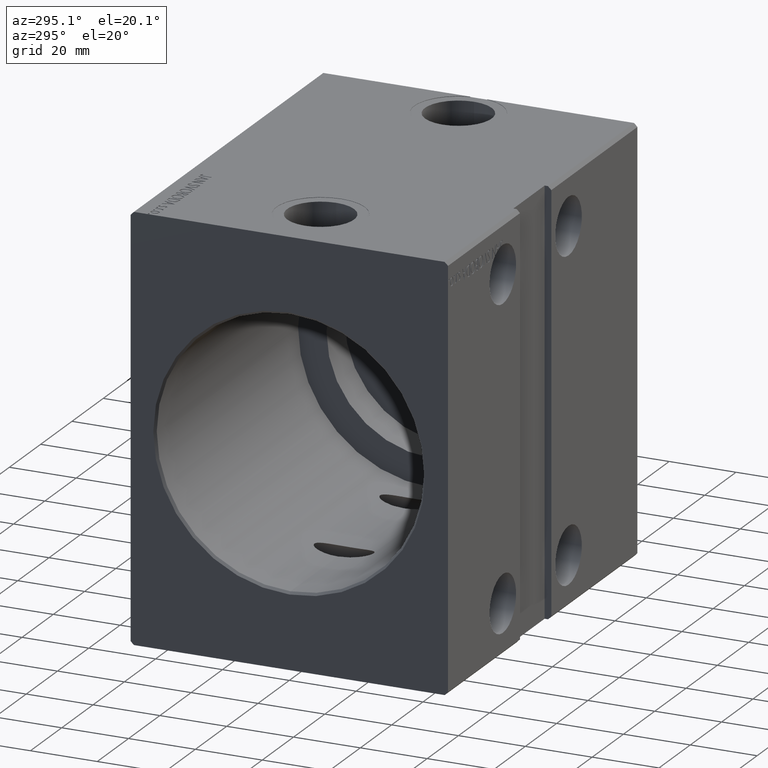
[diagram: clean part render]
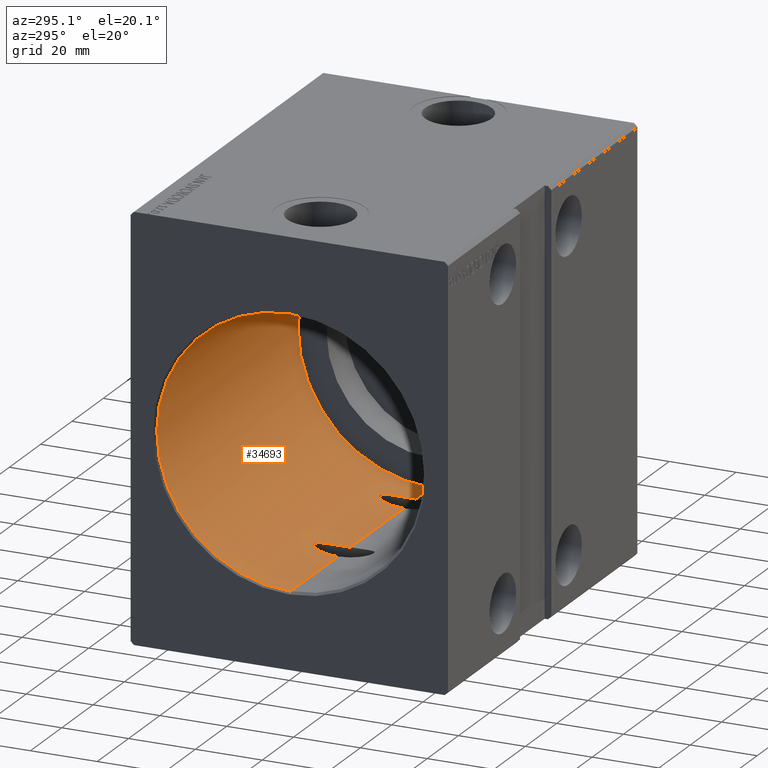
[diagram: same view with one face highlighted and labeled with its STEP entity id]
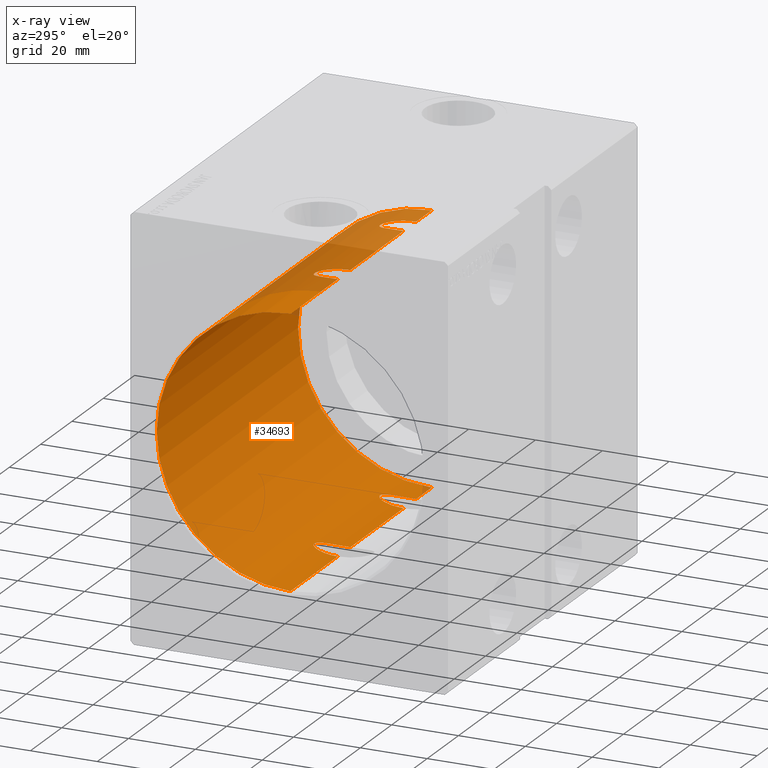
[diagram: x-ray of the same camera — body ghosted, the highlighted face saturated]
A machine part, auxiliary view. The second image highlights one B-rep face of the part: STEP entity #34693.
The next image is the same camera in x-ray: the body ghosted, the highlighted face saturated — about 9% of this face is hidden behind the body in this view.
In plain terms, the highlighted cylindrical surface (partial cylindrical patch) has radius 40 mm, axis along (-1, -0, -0).
Its self-contained STEP definition (entity closure, byte-faithful):
#150 = CARTESIAN_POINT ( 'NONE',  ( 33.57214693437428110, 8.350890721141237094, 39.11877739182680358 ) ) ;
#172 = LINE ( 'NONE', #32991, #10148 ) ;
#248 = B_SPLINE_CURVE_WITH_KNOTS ( 'NONE', 3,
 ( #18689, #33990, #17890, #14675, #17680, #10835, #8038, #36769, #30772, #27147, #7409, #27776, #28563, #23920, #14252, #21120, #4611, #20492 ),
 .UNSPECIFIED., .F., .F.,
 ( 4, 2, 2, 2, 2, 2, 2, 2, 4 ),
 ( 4.011897444213468737E-16, 0.002615585396976363806, 0.005231170793952326890, 0.006538963492440313420, 0.007846756190928299082, 0.008500652540172291480, 0.009154548889416283877, 0.009808445238660278009, 0.01046234158790427041 ),
 .UNSPECIFIED. ) ;
#268 = VERTEX_POINT ( 'NONE', #35918 ) ;
#344 = CARTESIAN_POINT ( 'NONE',  ( 91.00000000000000000, 0.000000000000000000, 40.00000000000000000 ) ) ;
#988 = CARTESIAN_POINT ( 'NONE',  ( 0.7000000000000616840, 4.898587196589413026E-15, -40.00000000000000000 ) ) ;
#1189 = CARTESIAN_POINT ( 'NONE',  ( 34.13479476889374098, 8.704262351708150547, -39.04153279242975572 ) ) ;
#1197 = VERTEX_POINT ( 'NONE', #22648 ) ;
#1205 = EDGE_CURVE ( 'NONE', #1252, #41865, #248, .T. ) ;
#1252 = VERTEX_POINT ( 'NONE', #40204 ) ;
#2001 = VERTEX_POINT ( 'NONE', #25834 ) ;
#2232 = B_SPLINE_CURVE_WITH_KNOTS ( 'NONE', 3,
 ( #12053, #38195, #12263, #5614, #8833, #21915, #41416, #34984, #25352, #9267, #42052, #9477, #18694, #31782, #15671, #2818, #2394, #15456, #28568, #41626, #38408, #9046, #35206, #5828 ),
 .UNSPECIFIED., .F., .F.,
 ( 4, 2, 2, 2, 2, 2, 2, 2, 2, 2, 2, 4 ),
 ( 0.02085609626494417876, 0.02215417883218052941, 0.02345226139941688007, 0.02604842653388958484, 0.02734650910112593897, 0.02799555038474411256, 0.02864459166836227921, 0.02929363295198044934, 0.02994267423559861946, 0.03059171551921678611, 0.03091623616102589026, 0.03124075680283499440 ),
 .UNSPECIFIED. ) ;
#2394 = CARTESIAN_POINT ( 'NONE',  ( 75.57710676253645943, 8.354814138639584442, 39.11793752145968028 ) ) ;
#2712 = CARTESIAN_POINT ( 'NONE',  ( 80.54571038801331895, 4.366864057599704196, -39.76972919806477336 ) ) ;
#2714 = CYLINDRICAL_SURFACE ( 'NONE', #13805, 40.00000000000000000 ) ;
#2818 = CARTESIAN_POINT ( 'NONE',  ( 75.40871134463458247, 8.209480517395437715, 39.14881666078688482 ) ) ;
#2953 = CARTESIAN_POINT ( 'NONE',  ( 31.27718047947739777, 3.482741801787033076, 39.85758575065943177 ) ) ;
#3058 = EDGE_CURVE ( 'NONE', #21246, #35544, #38176, .T. ) ;
#3068 = ORIENTED_EDGE ( 'NONE', *, *, #19797, .F. ) ;
#3200 = CARTESIAN_POINT ( 'NONE',  ( 36.60192945023006672, 8.199952475798266249, 39.15082488734756794 ) ) ;
#3322 = VECTOR ( 'NONE', #31318, 1000.000000000000000 ) ;
#3365 = CARTESIAN_POINT ( 'NONE',  ( 91.00000000000000000, 4.898587196589413026E-15, -40.00000000000000000 ) ) ;
#3404 = CARTESIAN_POINT ( 'NONE',  ( 77.54851048221539145, 8.813063603515809419, 39.01706381279743141 ) ) ;
#3545 = ORIENTED_EDGE ( 'NONE', *, *, #3058, .T. ) ;
#3612 = DIRECTION ( 'NONE',  ( -1.000000000000000000, -0.000000000000000000, -0.000000000000000000 ) ) ;
#3618 = CARTESIAN_POINT ( 'NONE',  ( 77.00000000000000000, 8.888194417315583351, 39.00000000000000000 ) ) ;
#3986 = CARTESIAN_POINT ( 'NONE',  ( 76.13859483857218891, 8.705886128782225342, -39.04116947103747748 ) ) ;
#4159 = CARTESIAN_POINT ( 'NONE',  ( 73.00000000000000000, 5.780399415896417278E-16, 40.00000000000000000 ) ) ;
#4199 = CARTESIAN_POINT ( 'NONE',  ( 73.06814962652907752, 1.752904412375390075, -39.96398568637000182 ) ) ;
#4447 = EDGE_CURVE ( 'NONE', #32976, #12187, #22585, .T. ) ;
#4579 = CARTESIAN_POINT ( 'NONE',  ( 0.7000000000000616840, 0.000000000000000000, 0.000000000000000000 ) ) ;
#4611 = CARTESIAN_POINT ( 'NONE',  ( 35.22259166980755651, 8.888194417315562035, -39.00000000000000711 ) ) ;
#4624 = CARTESIAN_POINT ( 'NONE',  ( 31.84034224388072332, 5.603247014670987625, -39.60782839838529412 ) ) ;
#4831 = CARTESIAN_POINT ( 'NONE',  ( 31.27718047947745816, 3.482741801787012204, -39.85758575065943177 ) ) ;
#4896 = ORIENTED_EDGE ( 'NONE', *, *, #19698, .T. ) ;
#5044 = CARTESIAN_POINT ( 'NONE',  ( 31.05225755694951317, 1.746770409802224311, -39.97130752758187811 ) ) ;
#5293 = EDGE_CURVE ( 'NONE', #12726, #1252, #8584, .T. ) ;
#5353 = CARTESIAN_POINT ( 'NONE',  ( 38.55324516737658058, 4.336586243679193764, 39.77318005738936080 ) ) ;
#5614 = CARTESIAN_POINT ( 'NONE',  ( 73.06814962652906331, 1.752904412375376531, 39.96398568637000182 ) ) ;
#5828 = CARTESIAN_POINT ( 'NONE',  ( 77.00000000000000000, 8.888194417315583351, 39.00000000000000000 ) ) ;
#5932 = CARTESIAN_POINT ( 'NONE',  ( 77.86322018110577403, 8.705178891867166868, -39.04132803922884420 ) ) ;
#5987 = CARTESIAN_POINT ( 'NONE',  ( 78.59111670934544236, 8.209697689840783852, 39.14877357463412011 ) ) ;
#6091 = EDGE_CURVE ( 'NONE', #36233, #12506, #172, .T. ) ;
#6387 = CARTESIAN_POINT ( 'NONE',  ( 31.05225755694946344, 1.746770409802232527, 39.97130752758188521 ) ) ;
#6415 = CARTESIAN_POINT ( 'NONE',  ( 80.98638329437709160, 0.8819960549049381537, 39.99268894227613202 ) ) ;
#6455 = ORIENTED_EDGE ( 'NONE', *, *, #10405, .F. ) ;
#6625 = CARTESIAN_POINT ( 'NONE',  ( 79.03930862434320659, 7.725932859796179386, 39.24719242089387450 ) ) ;
#6631 = CARTESIAN_POINT ( 'NONE',  ( 36.43557347892666343, 8.344890487185367078, 39.12006350427105161 ) ) ;
#6972 = EDGE_CURVE ( 'NONE', #41865, #28706, #33126, .T. ) ;
#7409 = CARTESIAN_POINT ( 'NONE',  ( 36.91073227392961087, 7.882168046752674684, -39.21603928047623100 ) ) ;
#7421 = CARTESIAN_POINT ( 'NONE',  ( 73.01334068797261523, 0.8751396838789607946, -39.99283631293248220 ) ) ;
#7583 = EDGE_CURVE ( 'NONE', #28706, #35544, #35746, .T. ) ;
#7633 = CARTESIAN_POINT ( 'NONE',  ( 74.58846641846849934, 7.192721627606916357, -39.34846814882651955 ) ) ;
#7847 = CARTESIAN_POINT ( 'NONE',  ( 33.09640844770643753, 7.890292373783818647, -39.21440103295969948 ) ) ;
#7915 = VERTEX_POINT ( 'NONE', #4159 ) ;
#8038 = CARTESIAN_POINT ( 'NONE',  ( 38.00983182122093496, 6.007179968913170853, -39.54838495781832819 ) ) ;
#8052 = CARTESIAN_POINT ( 'NONE',  ( 31.99184554558158311, 6.011549350863598207, -39.54773088821401217 ) ) ;
#8229 = CARTESIAN_POINT ( 'NONE',  ( 77.00000000000000000, 8.888194417315583351, 39.00000000000000000 ) ) ;
#8581 = CARTESIAN_POINT ( 'NONE',  ( 38.72230825713939595, 3.484280546040521287, 39.85734299538246006 ) ) ;
#8584 = LINE ( 'NONE', #25097, #3322 ) ;
#8833 = CARTESIAN_POINT ( 'NONE',  ( 73.10980483652021178, 2.193571123626156805, 39.94219404680328722 ) ) ;
#8934 = CARTESIAN_POINT ( 'NONE',  ( 80.98638329437710581, 0.8819960549049445930, -39.99268894227613913 ) ) ;
#9046 = CARTESIAN_POINT ( 'NONE',  ( 76.77712757299227064, 8.878478442374140300, 39.00221780115114001 ) ) ;
#9192 = ORIENTED_EDGE ( 'NONE', *, *, #15406, .T. ) ;
#9267 = CARTESIAN_POINT ( 'NONE',  ( 74.27182239767300587, 6.618623539690030810, 39.44913252582588115 ) ) ;
#9402 = CARTESIAN_POINT ( 'NONE',  ( 33.09640844770640911, 7.890292373783891478, 39.21440103295967816 ) ) ;
#9434 = CARTESIAN_POINT ( 'NONE',  ( 38.00983182122093496, 6.007179968913225920, 39.54838495781831398 ) ) ;
#9477 = CARTESIAN_POINT ( 'NONE',  ( 74.58846641846848513, 7.192721627606870172, 39.34846814882652666 ) ) ;
#10056 = CARTESIAN_POINT ( 'NONE',  ( 78.06190118001923395, 8.600817236880976324, 39.06458831139044463 ) ) ;
#10148 = VECTOR ( 'NONE', #3612, 1000.000000000000000 ) ;
#10405 = EDGE_CURVE ( 'NONE', #7915, #39182, #2232, .T. ) ;
#10671 = B_SPLINE_CURVE_WITH_KNOTS ( 'NONE', 3,
 ( #3618, #19500, #28946, #19288, #3404, #22504, #10056, #29798, #5987, #35997, #6625, #26369, #13278, #39422, #32997, #16700, #12646, #19709, #12426, #6415, #38573, #35362 ),
 .UNSPECIFIED., .F., .F.,
 ( 4, 2, 2, 2, 2, 2, 2, 2, 2, 2, 4 ),
 ( 0.03124075680283499440, 0.03156586646944081753, 0.03189097613604664067, 0.03254119546925828693, 0.03319141480246993320, 0.03384163413568157946, 0.03514207280210486506, 0.03644251146852815759, 0.03904338880137473572, 0.04034382746779803519, 0.04164426613422132772 ),
 .UNSPECIFIED. ) ;
#10835 = CARTESIAN_POINT ( 'NONE',  ( 38.16384749387301412, 5.591509799604454045, -39.60950613416586208 ) ) ;
#10851 = CARTESIAN_POINT ( 'NONE',  ( 74.37097286816660358, 6.812983839052423995, -39.41599220215406518 ) ) ;
#11302 = LINE ( 'NONE', #20955, #11731 ) ;
#11731 = VECTOR ( 'NONE', #17726, 1000.000000000000000 ) ;
#11733 = CARTESIAN_POINT ( 'NONE',  ( 78.59111670934548499, 8.209697689840799839, -39.14877357463412011 ) ) ;
#12010 = CARTESIAN_POINT ( 'NONE',  ( 39.00000000000139977, -1.975033726230713128E-13, 40.00000000000000000 ) ) ;
#12053 = CARTESIAN_POINT ( 'NONE',  ( 73.00000000000000000, 5.780399415896417278E-16, 40.00000000000000000 ) ) ;
#12080 = ORIENTED_EDGE ( 'NONE', *, *, #41712, .F. ) ;
#12154 = CARTESIAN_POINT ( 'NONE',  ( 78.06190118001926237, 8.600817236881001193, -39.06458831139043042 ) ) ;
#12187 = VERTEX_POINT ( 'NONE', #28306 ) ;
#12217 = CARTESIAN_POINT ( 'NONE',  ( 35.86954469703439941, 8.702382527277837454, 39.04195325235094316 ) ) ;
#12263 = CARTESIAN_POINT ( 'NONE',  ( 73.01334068797261523, 0.8751396838789510246, 39.99283631293250352 ) ) ;
#12426 = CARTESIAN_POINT ( 'NONE',  ( 80.93123102730362461, 1.760347307088199642, 39.96366178458815455 ) ) ;
#12506 = VERTEX_POINT ( 'NONE', #28045 ) ;
#12537 = B_SPLINE_CURVE_WITH_KNOTS ( 'NONE', 3,
 ( #12010, #31315, #24884, #8581, #5353, #31523, #9434, #29375, #19078, #16278, #15843, #3200, #6631, #16069, #12217, #32159, #42432, #38362 ),
 .UNSPECIFIED., .F., .F.,
 ( 4, 2, 2, 2, 2, 2, 2, 2, 4 ),
 ( 4.041264202224836000E-16, 0.002615585396976400669, 0.005231170793952397147, 0.006538963492440391483, 0.007846756190928385818, 0.008500652540172383420, 0.009154548889416382756, 0.009808445238660380358, 0.01046234158790437796 ),
 .UNSPECIFIED. ) ;
#12591 = CARTESIAN_POINT ( 'NONE',  ( 81.00000000000002842, 0.4396523920247054629, -40.00000000000000000 ) ) ;
#12614 = CARTESIAN_POINT ( 'NONE',  ( 34.55424423128182809, 8.848522382663812635, 39.00909019079053053 ) ) ;
#12646 = CARTESIAN_POINT ( 'NONE',  ( 80.71853671562243449, 3.508186181228627465, 39.85547049742937276 ) ) ;
#12726 = VERTEX_POINT ( 'NONE', #31168 ) ;
#13024 = DIRECTION ( 'NONE',  ( -1.000000000000000000, -0.000000000000000000, -0.000000000000000000 ) ) ;
#13039 = CARTESIAN_POINT ( 'NONE',  ( 32.95733738069867513, 7.721720542795610598, 39.24802279663229143 ) ) ;
#13278 = CARTESIAN_POINT ( 'NONE',  ( 79.63629655112555383, 6.817500190868253540, 39.41680541524587511 ) ) ;
#13805 = AXIS2_PLACEMENT_3D ( 'NONE', #19234, #28892, #32101 ) ;
#13846 = CARTESIAN_POINT ( 'NONE',  ( 74.70681071213223845, 7.377903018384911249, -39.31410217644513239 ) ) ;
#14252 = CARTESIAN_POINT ( 'NONE',  ( 35.86954469703442783, 8.702382527277757518, -39.04195325235096448 ) ) ;
#14264 = CARTESIAN_POINT ( 'NONE',  ( 75.10255778544194527, 7.897159810391429779, -39.21301165728715432 ) ) ;
#14269 = CARTESIAN_POINT ( 'NONE',  ( 33.93509665507554018, 8.599058470145475752, -39.06497553941076717 ) ) ;
#14675 = CARTESIAN_POINT ( 'NONE',  ( 38.72230825713936753, 3.484280546040485316, -39.85734299538246006 ) ) ;
#15095 = B_SPLINE_CURVE_WITH_KNOTS ( 'NONE', 3,
 ( #20297, #23724, #7421, #4199, #33158, #33368, #36359, #26733, #30785, #27572, #10851, #7633, #13846, #39793, #14264, #17277, #20717, #40013, #3986, #17066, #37204, #27160, #30156, #33792 ),
 .UNSPECIFIED., .F., .F.,
 ( 4, 2, 2, 2, 2, 2, 2, 2, 2, 2, 2, 4 ),
 ( 0.02085609626494422039, 0.02215417883218056411, 0.02345226139941690782, 0.02604842653388959178, 0.02734650910112593550, 0.02799555038474411950, 0.02864459166836230003, 0.02929363295198048056, 0.02994267423559866109, 0.03059171551921684162, 0.03091623616102594924, 0.03124075680283506032 ),
 .UNSPECIFIED. ) ;
#15121 = ORIENTED_EDGE ( 'NONE', *, *, #4447, .T. ) ;
#15406 = EDGE_CURVE ( 'NONE', #2001, #268, #12537, .T. ) ;
#15456 = CARTESIAN_POINT ( 'NONE',  ( 75.93976231450152170, 8.601702186180739673, 39.06439139068070432 ) ) ;
#15671 = CARTESIAN_POINT ( 'NONE',  ( 75.10255778544193106, 7.897159810391387147, 39.21301165728716853 ) ) ;
#15779 = CARTESIAN_POINT ( 'NONE',  ( 80.15652418789123601, 5.611982908940339243, -39.60657601176857412 ) ) ;
#15843 = CARTESIAN_POINT ( 'NONE',  ( 36.91073227392959666, 7.882168046752754620, 39.21603928047621679 ) ) ;
#16004 = CARTESIAN_POINT ( 'NONE',  ( 78.42566298075200848, 8.352678000873540398, -39.11839576585898470 ) ) ;
#16033 = CARTESIAN_POINT ( 'NONE',  ( 31.99184554558152982, 6.011549350863647057, 39.54773088821401927 ) ) ;
#16069 = CARTESIAN_POINT ( 'NONE',  ( 36.06971018587698552, 8.596468886650258767, 39.06555117366413299 ) ) ;
#16278 = CARTESIAN_POINT ( 'NONE',  ( 37.05180541677442108, 7.710174617361084337, 39.25029562884185452 ) ) ;
#16654 = EDGE_CURVE ( 'NONE', #7915, #2001, #11302, .T. ) ;
#16700 = CARTESIAN_POINT ( 'NONE',  ( 80.54571038801326210, 4.366864057599693538, 39.76972919806478046 ) ) ;
#17066 = CARTESIAN_POINT ( 'NONE',  ( 76.45171186835200672, 8.813097078647221139, -39.01705603477455497 ) ) ;
#17229 = CARTESIAN_POINT ( 'NONE',  ( 91.00000000000000000, 4.898587196589413026E-15, -40.00000000000000000 ) ) ;
#17277 = CARTESIAN_POINT ( 'NONE',  ( 75.40871134463456826, 8.209480517395482124, -39.14881666078688482 ) ) ;
#17652 = DIRECTION ( 'NONE',  ( -1.000000000000000000, 0.000000000000000000, 0.000000000000000000 ) ) ;
#17680 = CARTESIAN_POINT ( 'NONE',  ( 38.55324516737657348, 4.336586243679152908, -39.77318005738936080 ) ) ;
#17696 = CARTESIAN_POINT ( 'NONE',  ( 31.45100102384058260, 4.353716322937175143, -39.77123262300046491 ) ) ;
#17726 = DIRECTION ( 'NONE',  ( -1.000000000000000000, -0.000000000000000000, -0.000000000000000000 ) ) ;
#17890 = CARTESIAN_POINT ( 'NONE',  ( 38.94656372586337056, 1.758256962777156929, -39.97069594125083114 ) ) ;
#17906 = CARTESIAN_POINT ( 'NONE',  ( 31.00000000000001776, 4.320547275526808476E-15, -40.00000000000000000 ) ) ;
#18119 = CARTESIAN_POINT ( 'NONE',  ( 35.00000000000000711, 8.888194417315572693, -39.00000000000000711 ) ) ;
#18328 = CARTESIAN_POINT ( 'NONE',  ( 33.40469418568827820, 8.205957392806936923, -39.14956226300645170 ) ) ;
#18415 = B_SPLINE_CURVE_WITH_KNOTS ( 'NONE', 3,
 ( #42399, #32765, #12614, #29556, #25702, #150, #38759, #9402, #13039, #39397, #22477, #16033, #19258, #32339, #2953, #6387, #26127, #25915 ),
 .UNSPECIFIED., .F., .F.,
 ( 4, 2, 2, 2, 2, 2, 2, 2, 4 ),
 ( 0.01046234158790437796, 0.01111195125521938047, 0.01176156092253438125, 0.01241117058984938376, 0.01306078025716438454, 0.01435999959179438609, 0.01565921892642438765, 0.01825765759568439422, 0.02085609626494440080 ),
 .UNSPECIFIED. ) ;
#18519 = CARTESIAN_POINT ( 'NONE',  ( 0.7000000000000616840, 0.000000000000000000, 40.00000000000000000 ) ) ;
#18689 = CARTESIAN_POINT ( 'NONE',  ( 39.00000000000137845, -1.933016362199070337E-13, -40.00000000000000000 ) ) ;
#18694 = CARTESIAN_POINT ( 'NONE',  ( 74.70681071213223845, 7.377903018384873945, 39.31410217644515370 ) ) ;
#18733 = CIRCLE ( 'NONE', #33121, 40.00000000000000000 ) ;
#18782 = ORIENTED_EDGE ( 'NONE', *, *, #16654, .T. ) ;
#18810 = CARTESIAN_POINT ( 'NONE',  ( 79.63629655112558225, 6.817500190868268639, -39.41680541524587511 ) ) ;
#18925 = DIRECTION ( 'NONE',  ( 0.000000000000000000, 0.000000000000000000, -1.000000000000000000 ) ) ;
#19015 = CARTESIAN_POINT ( 'NONE',  ( 80.00453569807767451, 6.020847662574150938, -39.54633044189965574 ) ) ;
#19078 = CARTESIAN_POINT ( 'NONE',  ( 37.43569995406782880, 7.179022913423121821, 39.35214896718182587 ) ) ;
#19234 = CARTESIAN_POINT ( 'NONE',  ( 91.00000000000000000, 0.000000000000000000, 0.000000000000000000 ) ) ;
#19258 = CARTESIAN_POINT ( 'NONE',  ( 31.84034224388068779, 5.603247014671032034, 39.60782839838529412 ) ) ;
#19288 = CARTESIAN_POINT ( 'NONE',  ( 77.43934574472250176, 8.841323074390393444, 39.01065718486847800 ) ) ;
#19500 = CARTESIAN_POINT ( 'NONE',  ( 77.11072475337967091, 8.888194417315588680, 39.00000000000001421 ) ) ;
#19512 = ORIENTED_EDGE ( 'NONE', *, *, #5293, .F. ) ;
#19698 = EDGE_CURVE ( 'NONE', #1197, #21246, #39655, .T. ) ;
#19709 = CARTESIAN_POINT ( 'NONE',  ( 80.88971534772772998, 2.198302733259651198, 39.94194461723601819 ) ) ;
#19729 = DIRECTION ( 'NONE',  ( -1.000000000000000000, -0.000000000000000000, -0.000000000000000000 ) ) ;
#19797 = EDGE_CURVE ( 'NONE', #36233, #27762, #18733, .T. ) ;
#20297 = CARTESIAN_POINT ( 'NONE',  ( 73.00000000000000000, 5.476627126394349254E-15, -40.00000000000000000 ) ) ;
#20492 = CARTESIAN_POINT ( 'NONE',  ( 35.00000000000000711, 8.888194417315572693, -39.00000000000000711 ) ) ;
#20717 = CARTESIAN_POINT ( 'NONE',  ( 75.57710676253644522, 8.354814138639619969, -39.11793752145966607 ) ) ;
#20931 = CARTESIAN_POINT ( 'NONE',  ( 32.57256012174860160, 7.192548791584959744, -39.34966693918345015 ) ) ;
#20955 = CARTESIAN_POINT ( 'NONE',  ( 91.00000000000000000, 0.000000000000000000, 40.00000000000000000 ) ) ;
#21120 = CARTESIAN_POINT ( 'NONE',  ( 35.44814496955359573, 8.848081900637698283, -39.00919150776435629 ) ) ;
#21246 = VERTEX_POINT ( 'NONE', #18519 ) ;
#21374 = ORIENTED_EDGE ( 'NONE', *, *, #6091, .T. ) ;
#21915 = CARTESIAN_POINT ( 'NONE',  ( 73.28018952717590651, 3.500538506391954741, 39.85610001433710181 ) ) ;
#22450 = CARTESIAN_POINT ( 'NONE',  ( 77.22073123561260388, 8.878721509888563901, -39.00216240224276731 ) ) ;
#22477 = CARTESIAN_POINT ( 'NONE',  ( 32.35749870789384630, 6.805507322899450706, 39.41886368329796397 ) ) ;
#22487 = ORIENTED_EDGE ( 'NONE', *, *, #7583, .F. ) ;
#22504 = CARTESIAN_POINT ( 'NONE',  ( 77.86322018110574561, 8.705178891867140223, 39.04132803922884420 ) ) ;
#22523 = CARTESIAN_POINT ( 'NONE',  ( 31.00000000000001776, 4.320547275526808476E-15, -40.00000000000000000 ) ) ;
#22585 = B_SPLINE_CURVE_WITH_KNOTS ( 'NONE', 3,
 ( #35313, #41733, #22450, #25458, #24819, #5932, #12154, #16004, #11733, #28464, #28248, #41519, #18810, #19015, #15779, #2712, #25033, #41091, #28889, #8934, #12591, #41309 ),
 .UNSPECIFIED., .F., .F.,
 ( 4, 2, 2, 2, 2, 2, 2, 2, 2, 2, 4 ),
 ( 0.03124075680283506032, 0.03156586646944088692, 0.03189097613604671699, 0.03254119546925837020, 0.03319141480247002340, 0.03384163413568167661, 0.03514207280210498302, 0.03644251146852828943, 0.03904338880137488837, 0.04034382746779818785, 0.04164426613422148038 ),
 .UNSPECIFIED. ) ;
#22648 = CARTESIAN_POINT ( 'NONE',  ( 30.99999999999996803, -5.780399254337703889E-16, 40.00000000000000000 ) ) ;
#23087 = FACE_OUTER_BOUND ( 'NONE', #24838, .T. ) ;
#23724 = CARTESIAN_POINT ( 'NONE',  ( 72.99999999999921840, 0.4371452684178859238, -40.00000000000000000 ) ) ;
#23920 = CARTESIAN_POINT ( 'NONE',  ( 36.06971018587699973, 8.596468886650177055, -39.06555117366415431 ) ) ;
#24147 = CARTESIAN_POINT ( 'NONE',  ( 34.77886755181009448, 8.888194417315562035, -39.00000000000000711 ) ) ;
#24520 = LINE ( 'NONE', #17229, #37938 ) ;
#24819 = CARTESIAN_POINT ( 'NONE',  ( 77.54851048221541987, 8.813063603515839617, -39.01706381279741009 ) ) ;
#24838 = EDGE_LOOP ( 'NONE', ( #12080, #3068, #21374, #37539, #6455, #18782, #9192, #30963, #4896, #3545, #22487, #26901, #25758, #19512, #29825, #15121 ) ) ;
#24884 = CARTESIAN_POINT ( 'NONE',  ( 38.94656372586340609, 1.758256962777178023, 39.97069594125082403 ) ) ;
#25033 = CARTESIAN_POINT ( 'NONE',  ( 80.71853671562247712, 3.508186181228631462, -39.85547049742937276 ) ) ;
#25097 = CARTESIAN_POINT ( 'NONE',  ( 91.00000000000000000, 4.898587196589413026E-15, -40.00000000000000000 ) ) ;
#25352 = CARTESIAN_POINT ( 'NONE',  ( 73.99713873928055818, 6.024669445494610365, 39.54572412377565627 ) ) ;
#25458 = CARTESIAN_POINT ( 'NONE',  ( 77.43934574472250176, 8.841323074390446735, -39.01065718486845668 ) ) ;
#25702 = CARTESIAN_POINT ( 'NONE',  ( 33.93509665507549045, 8.599058470145555688, 39.06497553941075296 ) ) ;
#25758 = ORIENTED_EDGE ( 'NONE', *, *, #1205, .F. ) ;
#25834 = CARTESIAN_POINT ( 'NONE',  ( 39.00000000000139977, -1.975033726230713128E-13, 40.00000000000000000 ) ) ;
#25915 = CARTESIAN_POINT ( 'NONE',  ( 30.99999999999996803, -5.780399254337703889E-16, 40.00000000000000000 ) ) ;
#26127 = CARTESIAN_POINT ( 'NONE',  ( 30.99999999999917577, 0.8750561776355655352, 40.00000000000000000 ) ) ;
#26278 = VECTOR ( 'NONE', #19729, 1000.000000000000000 ) ;
#26369 = CARTESIAN_POINT ( 'NONE',  ( 79.42428242203958177, 7.197676588651832574, 39.34872371033357297 ) ) ;
#26733 = CARTESIAN_POINT ( 'NONE',  ( 73.84355187867357984, 5.612572045631595508, -39.60652766093454602 ) ) ;
#26901 = ORIENTED_EDGE ( 'NONE', *, *, #6972, .F. ) ;
#27024 = DIRECTION ( 'NONE',  ( 0.000000000000000000, 0.000000000000000000, 1.000000000000000000 ) ) ;
#27147 = CARTESIAN_POINT ( 'NONE',  ( 37.05180541677442818, 7.710174617361007066, -39.25029562884185452 ) ) ;
#27160 = CARTESIAN_POINT ( 'NONE',  ( 76.77712757299232749, 8.878478442374152735, -39.00221780115114711 ) ) ;
#27231 = DIRECTION ( 'NONE',  ( -1.000000000000000000, 0.000000000000000000, 0.000000000000000000 ) ) ;
#27572 = CARTESIAN_POINT ( 'NONE',  ( 74.27182239767303429, 6.618623539690069890, -39.44913252582585983 ) ) ;
#27762 = VERTEX_POINT ( 'NONE', #32329 ) ;
#27776 = CARTESIAN_POINT ( 'NONE',  ( 36.60192945023008804, 8.199952475798188090, -39.15082488734758215 ) ) ;
#28045 = CARTESIAN_POINT ( 'NONE',  ( 81.00000000000137845, 1.974098656450864809E-13, 40.00000000000000000 ) ) ;
#28248 = CARTESIAN_POINT ( 'NONE',  ( 79.03930862434323501, 7.725932859796192709, -39.24719242089387450 ) ) ;
#28306 = CARTESIAN_POINT ( 'NONE',  ( 81.00000000000140687, 1.997970507834764869E-13, -40.00000000000000000 ) ) ;
#28464 = CARTESIAN_POINT ( 'NONE',  ( 78.89834460036773578, 7.896197384792814411, -39.21320792050732962 ) ) ;
#28563 = CARTESIAN_POINT ( 'NONE',  ( 36.43557347892666343, 8.344890487185285366, -39.12006350427107293 ) ) ;
#28568 = CARTESIAN_POINT ( 'NONE',  ( 76.13859483857214627, 8.705886128782170275, 39.04116947103749169 ) ) ;
#28676 = VECTOR ( 'NONE', #13024, 1000.000000000000000 ) ;
#28706 = VERTEX_POINT ( 'NONE', #22523 ) ;
#28889 = CARTESIAN_POINT ( 'NONE',  ( 80.93123102730365304, 1.760347307088206525, -39.96366178458815455 ) ) ;
#28892 = DIRECTION ( 'NONE',  ( -1.000000000000000000, -0.000000000000000000, -0.000000000000000000 ) ) ;
#28946 = CARTESIAN_POINT ( 'NONE',  ( 77.22073123561258967, 8.878721509888510610, 39.00216240224278863 ) ) ;
#29375 = CARTESIAN_POINT ( 'NONE',  ( 37.64571886948710500, 6.799238401160353718, 39.41993557979120055 ) ) ;
#29431 = CARTESIAN_POINT ( 'NONE',  ( 35.00000000000000711, 8.888194417315572693, -39.00000000000000711 ) ) ;
#29556 = CARTESIAN_POINT ( 'NONE',  ( 34.13479476889369124, 8.704262351708251799, 39.04153279242975572 ) ) ;
#29798 = CARTESIAN_POINT ( 'NONE',  ( 78.42566298075198006, 8.352678000873515529, 39.11839576585899181 ) ) ;
#29825 = ORIENTED_EDGE ( 'NONE', *, *, #34735, .T. ) ;
#29913 = EDGE_CURVE ( 'NONE', #268, #1197, #18415, .T. ) ;
#30156 = CARTESIAN_POINT ( 'NONE',  ( 76.88947585469833257, 8.888194417315611773, -38.99999999999998579 ) ) ;
#30446 = CARTESIAN_POINT ( 'NONE',  ( 91.00000000000000000, 0.000000000000000000, 0.000000000000000000 ) ) ;
#30742 = DIRECTION ( 'NONE',  ( -1.000000000000000000, -0.000000000000000000, -0.000000000000000000 ) ) ;
#30772 = CARTESIAN_POINT ( 'NONE',  ( 37.43569995406782880, 7.179022913423050767, -39.35214896718183297 ) ) ;
#30785 = CARTESIAN_POINT ( 'NONE',  ( 73.99713873928057239, 6.024669445494645004, -39.54572412377564916 ) ) ;
#30790 = CARTESIAN_POINT ( 'NONE',  ( 30.99999999999922906, 0.8750561776355639809, -39.99999999999999289 ) ) ;
#30963 = ORIENTED_EDGE ( 'NONE', *, *, #29913, .T. ) ;
#31168 = CARTESIAN_POINT ( 'NONE',  ( 73.00000000000000000, 5.476627126394349254E-15, -40.00000000000000000 ) ) ;
#31315 = CARTESIAN_POINT ( 'NONE',  ( 39.00000000000003553, 0.8842772873619435536, 40.00000000000000000 ) ) ;
#31318 = DIRECTION ( 'NONE',  ( -1.000000000000000000, -0.000000000000000000, -0.000000000000000000 ) ) ;
#31378 = CARTESIAN_POINT ( 'NONE',  ( 77.00000000000001421, 8.888194417315609996, -38.99999999999999289 ) ) ;
#31420 = CARTESIAN_POINT ( 'NONE',  ( 32.95733738069870356, 7.721720542795547537, -39.24802279663229143 ) ) ;
#31523 = CARTESIAN_POINT ( 'NONE',  ( 38.16384749387303543, 5.591509799604510000, 39.60950613416584787 ) ) ;
#31782 = CARTESIAN_POINT ( 'NONE',  ( 74.96368527018283601, 7.729691225309620606, 39.24645151411821331 ) ) ;
#32101 = DIRECTION ( 'NONE',  ( 0.000000000000000000, 0.000000000000000000, 1.000000000000000000 ) ) ;
#32159 = CARTESIAN_POINT ( 'NONE',  ( 35.44814496955356731, 8.848081900637779995, 39.00919150776432787 ) ) ;
#32329 = CARTESIAN_POINT ( 'NONE',  ( 91.00000000000000000, 4.898587196589413026E-15, -40.00000000000000000 ) ) ;
#32339 = CARTESIAN_POINT ( 'NONE',  ( 31.45100102384053997, 4.353716322937207117, 39.77123262300046491 ) ) ;
#32765 = CARTESIAN_POINT ( 'NONE',  ( 34.77886755181008738, 8.888194417315640194, 38.99999999999998579 ) ) ;
#32976 = VERTEX_POINT ( 'NONE', #31378 ) ;
#32991 = CARTESIAN_POINT ( 'NONE',  ( 91.00000000000000000, 0.000000000000000000, 40.00000000000000000 ) ) ;
#32997 = CARTESIAN_POINT ( 'NONE',  ( 80.15652418789117917, 5.611982908940325920, 39.60657601176856701 ) ) ;
#33121 = AXIS2_PLACEMENT_3D ( 'NONE', #30446, #27231, #27024 ) ;
#33126 = B_SPLINE_CURVE_WITH_KNOTS ( 'NONE', 3,
 ( #18119, #24147, #34625, #1189, #14269, #34413, #18328, #7847, #31420, #20931, #34004, #8052, #4624, #17696, #4831, #5044, #30790, #17906 ),
 .UNSPECIFIED., .F., .F.,
 ( 4, 2, 2, 2, 2, 2, 2, 2, 4 ),
 ( 0.01046234158790427041, 0.01111195125521926078, 0.01176156092253424941, 0.01241117058984923804, 0.01306078025716422841, 0.01435999959179420742, 0.01565921892642418642, 0.01825765759568414096, 0.02085609626494409549 ),
 .UNSPECIFIED. ) ;
#33158 = CARTESIAN_POINT ( 'NONE',  ( 73.10980483652021178, 2.193571123626170127, -39.94219404680327301 ) ) ;
#33368 = CARTESIAN_POINT ( 'NONE',  ( 73.28018952717586387, 3.500538506391972948, -39.85610001433708760 ) ) ;
#33792 = CARTESIAN_POINT ( 'NONE',  ( 77.00000000000001421, 8.888194417315609996, -38.99999999999999289 ) ) ;
#33990 = CARTESIAN_POINT ( 'NONE',  ( 39.00000000000001421, 0.8842772873619367813, -40.00000000000000711 ) ) ;
#34004 = CARTESIAN_POINT ( 'NONE',  ( 32.35749870789388183, 6.805507322899399192, -39.41886368329797818 ) ) ;
#34413 = CARTESIAN_POINT ( 'NONE',  ( 33.57214693437431663, 8.350890721141160711, -39.11877739182682490 ) ) ;
#34625 = CARTESIAN_POINT ( 'NONE',  ( 34.55424423128184941, 8.848522382663713159, -39.00909019079055895 ) ) ;
#34693 = ADVANCED_FACE ( 'NONE', ( #23087 ), #2714, .F. ) ;
#34735 = EDGE_CURVE ( 'NONE', #12726, #32976, #15095, .T. ) ;
#34984 = CARTESIAN_POINT ( 'NONE',  ( 73.84355187867355141, 5.612572045631567086, 39.60652766093457444 ) ) ;
#35206 = CARTESIAN_POINT ( 'NONE',  ( 76.88947585469833257, 8.888194417315585127, 39.00000000000000711 ) ) ;
#35313 = CARTESIAN_POINT ( 'NONE',  ( 77.00000000000001421, 8.888194417315609996, -38.99999999999999289 ) ) ;
#35362 = CARTESIAN_POINT ( 'NONE',  ( 81.00000000000137845, 1.974098656450864809E-13, 40.00000000000000000 ) ) ;
#35544 = VERTEX_POINT ( 'NONE', #988 ) ;
#35746 = LINE ( 'NONE', #3365, #28676 ) ;
#35918 = CARTESIAN_POINT ( 'NONE',  ( 34.99999999999999289, 8.888194417315633089, 38.99999999999998579 ) ) ;
#35997 = CARTESIAN_POINT ( 'NONE',  ( 78.89834460036772157, 7.896197384792803753, 39.21320792050734383 ) ) ;
#36222 = CARTESIAN_POINT ( 'NONE',  ( 91.00000000000000000, 0.000000000000000000, 40.00000000000000000 ) ) ;
#36233 = VERTEX_POINT ( 'NONE', #344 ) ;
#36359 = CARTESIAN_POINT ( 'NONE',  ( 73.45160911352975575, 4.357593458878309178, -39.77088599141657710 ) ) ;
#36769 = CARTESIAN_POINT ( 'NONE',  ( 37.64571886948711210, 6.799238401160293321, -39.41993557979121476 ) ) ;
#37204 = CARTESIAN_POINT ( 'NONE',  ( 76.55843943076695268, 8.840818478083530607, -39.01077160859177440 ) ) ;
#37539 = ORIENTED_EDGE ( 'NONE', *, *, #41355, .F. ) ;
#37938 = VECTOR ( 'NONE', #30742, 1000.000000000000000 ) ;
#38176 = CIRCLE ( 'NONE', #41572, 40.00000000000000000 ) ;
#38195 = CARTESIAN_POINT ( 'NONE',  ( 72.99999999999918998, 0.4371452684178796511, 39.99999999999998579 ) ) ;
#38362 = CARTESIAN_POINT ( 'NONE',  ( 34.99999999999999289, 8.888194417315633089, 38.99999999999998579 ) ) ;
#38408 = CARTESIAN_POINT ( 'NONE',  ( 76.55843943076691005, 8.840818478083509291, 39.01077160859176018 ) ) ;
#38573 = CARTESIAN_POINT ( 'NONE',  ( 81.00000000000000000, 0.4396523920247002448, 40.00000000000000000 ) ) ;
#38759 = CARTESIAN_POINT ( 'NONE',  ( 33.40469418568824977, 8.205957392807009754, 39.14956226300643038 ) ) ;
#39182 = VERTEX_POINT ( 'NONE', #8229 ) ;
#39397 = CARTESIAN_POINT ( 'NONE',  ( 32.57256012174857318, 7.192548791585013923, 39.34966693918343594 ) ) ;
#39422 = CARTESIAN_POINT ( 'NONE',  ( 80.00453569807763188, 6.020847662574139392, 39.54633044189964863 ) ) ;
#39655 = LINE ( 'NONE', #36222, #26278 ) ;
#39793 = CARTESIAN_POINT ( 'NONE',  ( 74.96368527018283601, 7.729691225309658797, -39.24645151411822042 ) ) ;
#40013 = CARTESIAN_POINT ( 'NONE',  ( 75.93976231450153591, 8.601702186180771648, -39.06439139068069011 ) ) ;
#40204 = CARTESIAN_POINT ( 'NONE',  ( 39.00000000000137845, -1.933016362199070337E-13, -40.00000000000000000 ) ) ;
#41091 = CARTESIAN_POINT ( 'NONE',  ( 80.88971534772775840, 2.198302733259653419, -39.94194461723602529 ) ) ;
#41309 = CARTESIAN_POINT ( 'NONE',  ( 81.00000000000140687, 1.997970507834764869E-13, -40.00000000000000000 ) ) ;
#41355 = EDGE_CURVE ( 'NONE', #39182, #12506, #10671, .T. ) ;
#41416 = CARTESIAN_POINT ( 'NONE',  ( 73.45160911352974153, 4.357593458878281645, 39.77088599141658420 ) ) ;
#41519 = CARTESIAN_POINT ( 'NONE',  ( 79.42428242203959599, 7.197676588651847673, -39.34872371033357297 ) ) ;
#41572 = AXIS2_PLACEMENT_3D ( 'NONE', #4579, #17652, #18925 ) ;
#41626 = CARTESIAN_POINT ( 'NONE',  ( 76.45171186835193566, 8.813097078647166072, 39.01705603477456208 ) ) ;
#41712 = EDGE_CURVE ( 'NONE', #27762, #12187, #24520, .T. ) ;
#41733 = CARTESIAN_POINT ( 'NONE',  ( 77.11072475337969934, 8.888194417315611773, -39.00000000000000711 ) ) ;
#41865 = VERTEX_POINT ( 'NONE', #29431 ) ;
#42052 = CARTESIAN_POINT ( 'NONE',  ( 74.37097286816663200, 6.812983839052382251, 39.41599220215405808 ) ) ;
#42399 = CARTESIAN_POINT ( 'NONE',  ( 34.99999999999999289, 8.888194417315633089, 38.99999999999998579 ) ) ;
#42432 = CARTESIAN_POINT ( 'NONE',  ( 35.22259166980754230, 8.888194417315640194, 38.99999999999998579 ) ) ;